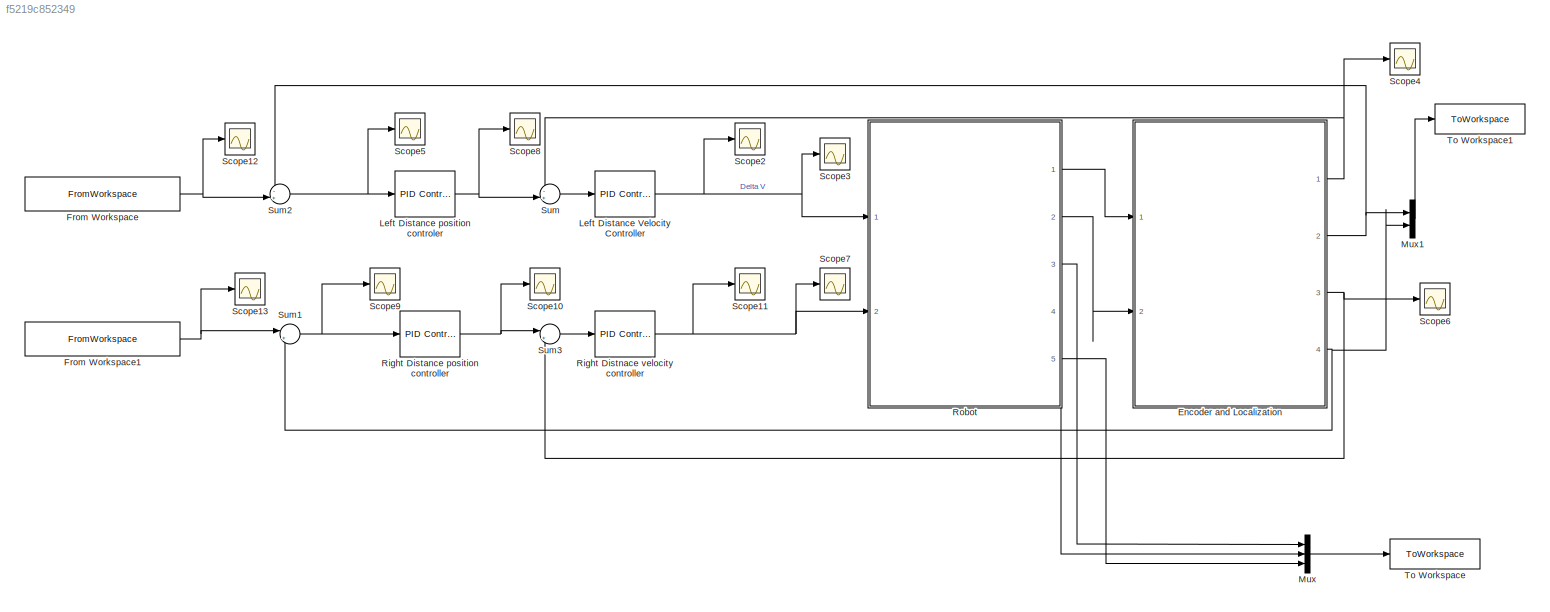
MODEL slx_f5219c852349
KIND model
CONFIG AbsTol = auto
CONFIG EnableMultiTasking = off
CONFIG FixedStep = auto
CONFIG MaxStep = auto
CONFIG MinStep = auto
CONFIG RelTol = 1e-3
CONFIG SampleTimeConstraint = Unconstrained
CONFIG SolverName = VariableStepAuto
CONFIG StartTime = 0.0
CONFIG StopTime = 10.0
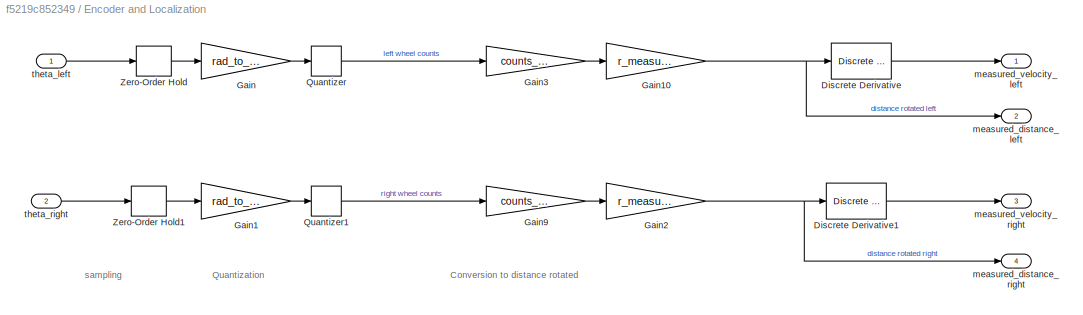
BLOCK [SubSystem] Encoder and Localization
  Ports = [2, 4]
  RequestExecContextInheritance = off
BLOCK [Reference] Encoder and Localization/Discrete Derivative  REF=simulink/Discrete/Discrete Derivative
  Ports = [1, 1]
  SourceBlock = simulink/Discrete/Discrete Derivative
  SourceProductBaseCode = SL
  SourceType = Discrete Derivative
BLOCK [Reference] Encoder and Localization/Discrete Derivative1  REF=simulink/Discrete/Discrete Derivative
  Ports = [1, 1]
  SourceBlock = simulink/Discrete/Discrete Derivative
  SourceProductBaseCode = SL
  SourceType = Discrete Derivative
BLOCK [Gain] Encoder and Localization/Gain
  Gain = rad_to_counts
BLOCK [Gain] Encoder and Localization/Gain1
  Gain = rad_to_counts
BLOCK [Gain] Encoder and Localization/Gain10
  Gain = r_measured_ft
BLOCK [Gain] Encoder and Localization/Gain2
  Gain = r_measured_ft
BLOCK [Gain] Encoder and Localization/Gain3
  Gain = counts_to_rad
BLOCK [Gain] Encoder and Localization/Gain9
  Gain = counts_to_rad
BLOCK [Quantizer] Encoder and Localization/Quantizer
  QuantizationInterval = 1
BLOCK [Quantizer] Encoder and Localization/Quantizer1
  QuantizationInterval = 1
BLOCK [ZeroOrderHold] Encoder and Localization/Zero-Order Hold
  SampleTime = Ts
BLOCK [ZeroOrderHold] Encoder and Localization/Zero-Order Hold1
  SampleTime = Ts
BLOCK [Outport] Encoder and Localization/measured_distance_left
  Port = 2
BLOCK [Outport] Encoder and Localization/measured_distance_right
  Port = 4
BLOCK [Outport] Encoder and Localization/measured_velocity_left
BLOCK [Outport] Encoder and Localization/measured_velocity_right
  Port = 3
BLOCK [Inport] Encoder and Localization/theta_left
BLOCK [Inport] Encoder and Localization/theta_right
  Port = 2
BLOCK [FromWorkspace] From Workspace
  VariableName = left_distance_desired
BLOCK [FromWorkspace] From Workspace1
  VariableName = right_distance_desired
BLOCK [Reference] Left Distance Velocity Controller  REF=slpidlib/PID Controller
  Ports = [1, 1]
  SourceBlock = slpidlib/PID Controller
  SourceProductBaseCode = SL
  SourceType = PID 1dof
BLOCK [Reference] Left Distance position controler  REF=slpidlib/PID Controller
  Ports = [1, 1]
  SourceBlock = slpidlib/PID Controller
  SourceProductBaseCode = SL
  SourceType = PID 1dof
BLOCK [Mux] Mux
  DisplayOption = bar
  Inputs = 3
  Ports = [3, 1]
BLOCK [Mux] Mux1
  DisplayOption = bar
  Inputs = 2
  Ports = [2, 1]
BLOCK [Reference] Right Distance position controller  REF=slpidlib/PID Controller
  Ports = [1, 1]
  SourceBlock = slpidlib/PID Controller
  SourceProductBaseCode = SL
  SourceType = PID 1dof
BLOCK [Reference] Right Distnace velocity controller  REF=slpidlib/PID Controller
  Ports = [1, 1]
  SourceBlock = slpidlib/PID Controller
  SourceProductBaseCode = SL
  SourceType = PID 1dof
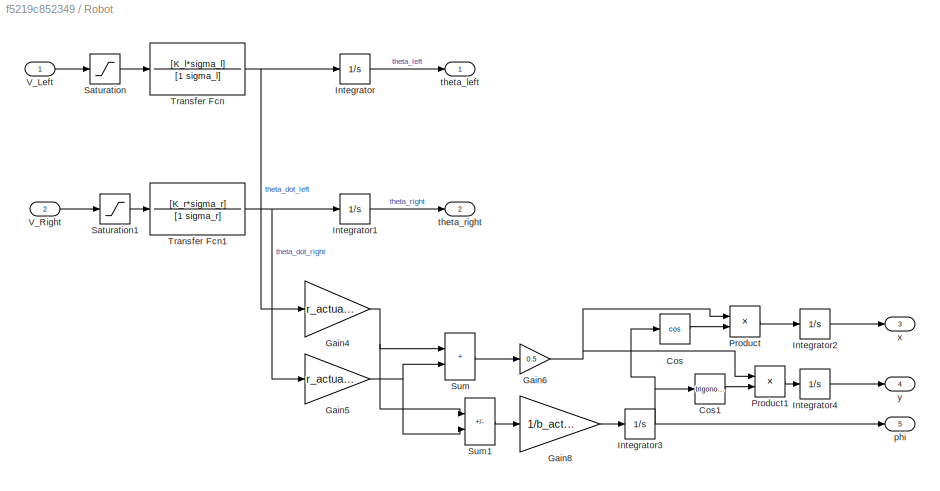
BLOCK [SubSystem] Robot
  Ports = [2, 5]
  RequestExecContextInheritance = off
BLOCK [Trigonometry] Robot/Cos
  Operator = cos
  Ports = [1, 1]
BLOCK [Trigonometry] Robot/Cos1
  Ports = [1, 1]
BLOCK [Gain] Robot/Gain4
  Gain = r_actual_ft
BLOCK [Gain] Robot/Gain5
  Gain = r_actual_ft
BLOCK [Gain] Robot/Gain6
  Gain = 0.5
BLOCK [Gain] Robot/Gain8
  Gain = 1/b_actual_ft
BLOCK [Integrator] Robot/Integrator
  Ports = [1, 1]
BLOCK [Integrator] Robot/Integrator1
  Ports = [1, 1]
BLOCK [Integrator] Robot/Integrator2
  Ports = [1, 1]
BLOCK [Integrator] Robot/Integrator3
  Ports = [1, 1]
BLOCK [Integrator] Robot/Integrator4
  Ports = [1, 1]
BLOCK [Product] Robot/Product
  Ports = [2, 1]
BLOCK [Product] Robot/Product1
  Ports = [2, 1]
BLOCK [Saturate] Robot/Saturation
  LowerLimit = -7.5
  UpperLimit = 7.5
BLOCK [Saturate] Robot/Saturation1
  LowerLimit = -7.5
  UpperLimit = 7.5
BLOCK [Sum] Robot/Sum
  IconShape = rectangular
  Ports = [2, 1]
BLOCK [Sum] Robot/Sum1
  IconShape = rectangular
  Inputs = -+
  Ports = [2, 1]
BLOCK [TransferFcn] Robot/Transfer Fcn
  Denominator = [1 sigma_l]
  Numerator = [K_l*sigma_l]
BLOCK [TransferFcn] Robot/Transfer Fcn1
  Denominator = [1 sigma_r]
  Numerator = [K_r*sigma_r]
BLOCK [Inport] Robot/V_Left
BLOCK [Inport] Robot/V_Right
  Port = 2
BLOCK [Outport] Robot/phi
  Port = 5
BLOCK [Outport] Robot/theta_left
BLOCK [Outport] Robot/theta_right
  Port = 2
BLOCK [Outport] Robot/x
  Port = 3
BLOCK [Outport] Robot/y
  Port = 4
BLOCK [Scope] Scope10
  Floating = off
  NumInputPorts = 1
  Ports = [1]
  ScopeSpecificationString = Simulink.scopes.TimeScopeBlockCfg('CurrentConfiguration', extmgr.ConfigurationSet(extmgr.Configuration('Core','General UI',true),extmgr.Configuration('Core','Source UI',true),extmgr.Configuration('Sources','WiredSimulink',true,'DataLoggingVariableName','ScopeData2'),extmgr.Configuration('Visuals','Time Domain',true,'SerializedDisplays',{struct('MinYLimReal','-0.33242','MaxYLimReal','1.14805','YLab...<+1415ch>
BLOCK [Scope] Scope11
  Floating = off
  NumInputPorts = 1
  Ports = [1]
  ScopeSpecificationString = Simulink.scopes.TimeScopeBlockCfg('CurrentConfiguration', extmgr.ConfigurationSet(extmgr.Configuration('Core','General UI',true),extmgr.Configuration('Core','Source UI',true),extmgr.Configuration('Sources','WiredSimulink',true,'DataLoggingVariableName','ScopeData3'),extmgr.Configuration('Visuals','Time Domain',true,'SerializedDisplays',{struct('MinYLimReal','-4.90899','MaxYLimReal','4.60204','YLab...<+1392ch>
BLOCK [Scope] Scope12
  Floating = off
  NumInputPorts = 1
  Ports = [1]
  ScopeSpecificationString = Simulink.scopes.TimeScopeBlockCfg('CurrentConfiguration', extmgr.ConfigurationSet(extmgr.Configuration('Core','General UI',true),extmgr.Configuration('Core','Source UI',true),extmgr.Configuration('Sources','WiredSimulink',true,'DataLoggingVariableName','ScopeData4'),extmgr.Configuration('Visuals','Time Domain',true,'SerializedDisplays',{struct('MinYLimReal','-0.25','MaxYLimReal','2.25','YLabelReal...<+1409ch>
BLOCK [Scope] Scope13
  Floating = off
  NumInputPorts = 1
  Ports = [1]
  ScopeSpecificationString = Simulink.scopes.TimeScopeBlockCfg('CurrentConfiguration', extmgr.ConfigurationSet(extmgr.Configuration('Core','General UI',true),extmgr.Configuration('Core','Source UI',true),extmgr.Configuration('Sources','WiredSimulink',true,'DataLoggingVariableName','ScopeData5'),extmgr.Configuration('Visuals','Time Domain',true,'SerializedDisplays',{struct('MinYLimReal','-0.25','MaxYLimReal','2.25','YLabelReal...<+1384ch>
BLOCK [Scope] Scope2
  Floating = off
  NumInputPorts = 1
  Ports = [1]
  ScopeSpecificationString = Simulink.scopes.TimeScopeBlockCfg('CurrentConfiguration', extmgr.ConfigurationSet(extmgr.Configuration('Core','General UI',true),extmgr.Configuration('Core','Source UI',true),extmgr.Configuration('Sources','WiredSimulink',true,'DataLoggingVariableName','ScopeData6'),extmgr.Configuration('Visuals','Time Domain',true,'SerializedDisplays',{struct('MinYLimReal','-0.97539','MaxYLimReal','4.90377','YLab...<+1396ch>
BLOCK [Scope] Scope3
  Floating = off
  NumInputPorts = 1
  Ports = [1]
  ScopeSpecificationString = Simulink.scopes.TimeScopeBlockCfg('CurrentConfiguration', extmgr.ConfigurationSet(extmgr.Configuration('Core','General UI',true),extmgr.Configuration('Core','Source UI',true),extmgr.Configuration('Sources','WiredSimulink',true,'DataLoggingVariableName','ScopeData7'),extmgr.Configuration('Visuals','Time Domain',true,'SerializedDisplays',{struct('MinYLimReal','-0.97539','MaxYLimReal','4.90377','YLab...<+1394ch>
BLOCK [Scope] Scope4
  Floating = off
  NumInputPorts = 1
  Ports = [1]
  ScopeSpecificationString = Simulink.scopes.TimeScopeBlockCfg('CurrentConfiguration', extmgr.ConfigurationSet(extmgr.Configuration('Core','General UI',true),extmgr.Configuration('Core','Source UI',true),extmgr.Configuration('Sources','WiredSimulink',true,'DataLoggingVariableName','ScopeData8'),extmgr.Configuration('Visuals','Time Domain',true,'SerializedDisplays',{struct('MinYLimReal','-0.34907','MaxYLimReal','2.26893','YLab...<+1411ch>
BLOCK [Scope] Scope5
  Floating = off
  NumInputPorts = 1
  Ports = [1]
  ScopeSpecificationString = Simulink.scopes.TimeScopeBlockCfg('CurrentConfiguration', extmgr.ConfigurationSet(extmgr.Configuration('Core','General UI',true),extmgr.Configuration('Core','Source UI',true),extmgr.Configuration('Sources','WiredSimulink',true,'DataLoggingVariableName','ScopeData9'),extmgr.Configuration('Visuals','Time Domain',true,'SerializedDisplays',{struct('MinYLimReal','-0.31278','MaxYLimReal','0.8675','YLabe...<+1413ch>
BLOCK [Scope] Scope6
  Floating = off
  NumInputPorts = 1
  Ports = [1]
  ScopeSpecificationString = Simulink.scopes.TimeScopeBlockCfg('CurrentConfiguration', extmgr.ConfigurationSet(extmgr.Configuration('Core','General UI',true),extmgr.Configuration('Core','Source UI',true),extmgr.Configuration('Sources','WiredSimulink',true,'DataLoggingVariableName','ScopeData10'),extmgr.Configuration('Visuals','Time Domain',true,'SerializedDisplays',{struct('MinYLimReal','-0.27085','MaxYLimReal','2.31114','YLa...<+1414ch>
BLOCK [Scope] Scope7
  Floating = off
  NumInputPorts = 1
  Ports = [1]
  ScopeSpecificationString = Simulink.scopes.TimeScopeBlockCfg('CurrentConfiguration', extmgr.ConfigurationSet(extmgr.Configuration('Core','General UI',true),extmgr.Configuration('Core','Source UI',true),extmgr.Configuration('Sources','WiredSimulink',true,'DataLoggingVariableName','ScopeData11'),extmgr.Configuration('Visuals','Time Domain',true,'SerializedDisplays',{struct('MinYLimReal','-6.08086','MaxYLimReal','44.30888','YL...<+1396ch>
BLOCK [Scope] Scope8
  Floating = off
  NumInputPorts = 1
  Ports = [1]
  ScopeSpecificationString = Simulink.scopes.TimeScopeBlockCfg('CurrentConfiguration', extmgr.ConfigurationSet(extmgr.Configuration('Core','General UI',true),extmgr.Configuration('Core','Source UI',true),extmgr.Configuration('Sources','WiredSimulink',true,'DataLoggingVariableName','ScopeData12'),extmgr.Configuration('Visuals','Time Domain',true,'SerializedDisplays',{struct('MinYLimReal','-0.43152','MaxYLimReal','3.1402','YLab...<+1417ch>
BLOCK [Scope] Scope9
  Floating = off
  NumInputPorts = 1
  Ports = [1]
  ScopeSpecificationString = Simulink.scopes.TimeScopeBlockCfg('CurrentConfiguration', extmgr.ConfigurationSet(extmgr.Configuration('Core','General UI',true),extmgr.Configuration('Core','Source UI',true),extmgr.Configuration('Sources','WiredSimulink',true),extmgr.Configuration('Visuals','Time Domain',true,'SerializedDisplays',{struct('MinYLimReal','-0.30989','MaxYLimReal','2.20429','YLabelReal','','MinYLimMag','0.00000','MaxY...<+1352ch>
BLOCK [Sum] Sum
  Inputs = -+|
  Ports = [2, 1]
BLOCK [Sum] Sum1
  Inputs = |+-
  Ports = [2, 1]
BLOCK [Sum] Sum2
  Inputs = -+|
  Ports = [2, 1]
BLOCK [Sum] Sum3
  Inputs = |+-
  Ports = [2, 1]
BLOCK [ToWorkspace] To Workspace
  FixptAsFi = on
  MaxDataPoints = inf
  Ports = [1]
  SampleTime = .1
  SaveFormat = Timeseries
  VariableName = Pos
BLOCK [ToWorkspace] To Workspace1
  FixptAsFi = on
  MaxDataPoints = inf
  Ports = [1]
  SampleTime = .1
  SaveFormat = Timeseries
  VariableName = Wheel_Pos
ANNOTATION Encoder and Localization: Conversion to distance rotated
ANNOTATION Encoder and Localization: Quantization
ANNOTATION Encoder and Localization: sampling
LINE Encoder and Localization/Discrete Derivative1:1 -> Encoder and Localization/measured_velocity_right:1
LINE Encoder and Localization/Discrete Derivative:1 -> Encoder and Localization/measured_velocity_left:1
NET Encoder and Localization/Gain10:1 -> Encoder and Localization/Discrete Derivative:1, Encoder and Localization/measured_distance_left:1
LINE Encoder and Localization/Gain1:1 -> Encoder and Localization/Quantizer1:1
NET Encoder and Localization/Gain2:1 -> Encoder and Localization/Discrete Derivative1:1, Encoder and Localization/measured_distance_right:1
LINE Encoder and Localization/Gain3:1 -> Encoder and Localization/Gain10:1
LINE Encoder and Localization/Gain9:1 -> Encoder and Localization/Gain2:1
LINE Encoder and Localization/Gain:1 -> Encoder and Localization/Quantizer:1
LINE Encoder and Localization/Quantizer1:1 -> Encoder and Localization/Gain9:1
LINE Encoder and Localization/Quantizer:1 -> Encoder and Localization/Gain3:1
LINE Encoder and Localization/Zero-Order Hold1:1 -> Encoder and Localization/Gain1:1
LINE Encoder and Localization/Zero-Order Hold:1 -> Encoder and Localization/Gain:1
LINE Encoder and Localization/theta_left:1 -> Encoder and Localization/Zero-Order Hold:1
LINE Encoder and Localization/theta_right:1 -> Encoder and Localization/Zero-Order Hold1:1
NET Encoder and Localization:1 -> Scope4:1, Sum:1
NET Encoder and Localization:2 -> Mux1:1, Sum2:1
NET Encoder and Localization:3 -> Scope6:1, Sum3:2
NET Encoder and Localization:4 -> Mux1:2, Sum1:2
NET From Workspace1:1 -> Scope13:1, Sum1:1
NET From Workspace:1 -> Scope12:1, Sum2:2
NET Left Distance Velocity Controller:1 -> Robot:1, Scope2:1, Scope3:1
NET Left Distance position controler:1 -> Scope8:1, Sum:2
LINE Mux1:1 -> To Workspace1:1
LINE Mux:1 -> To Workspace:1
NET Right Distance position controller:1 -> Scope10:1, Sum3:1
NET Right Distnace velocity controller:1 -> Robot:2, Scope11:1, Scope7:1
LINE Robot/Cos1:1 -> Robot/Product1:2
LINE Robot/Cos:1 -> Robot/Product:2
NET Robot/Gain4:1 -> Robot/Sum1:1, Robot/Sum:1
NET Robot/Gain5:1 -> Robot/Sum1:2, Robot/Sum:2
NET Robot/Gain6:1 -> Robot/Product1:1, Robot/Product:1
LINE Robot/Gain8:1 -> Robot/Integrator3:1
LINE Robot/Integrator1:1 -> Robot/theta_right:1
LINE Robot/Integrator2:1 -> Robot/x:1
NET Robot/Integrator3:1 -> Robot/Cos1:1, Robot/Cos:1, Robot/phi:1
LINE Robot/Integrator4:1 -> Robot/y:1
LINE Robot/Integrator:1 -> Robot/theta_left:1
LINE Robot/Product1:1 -> Robot/Integrator4:1
LINE Robot/Product:1 -> Robot/Integrator2:1
LINE Robot/Saturation1:1 -> Robot/Transfer Fcn1:1
LINE Robot/Saturation:1 -> Robot/Transfer Fcn:1
LINE Robot/Sum1:1 -> Robot/Gain8:1
LINE Robot/Sum:1 -> Robot/Gain6:1
NET Robot/Transfer Fcn1:1 -> Robot/Gain5:1, Robot/Integrator1:1
NET Robot/Transfer Fcn:1 -> Robot/Gain4:1, Robot/Integrator:1
LINE Robot/V_Left:1 -> Robot/Saturation:1
LINE Robot/V_Right:1 -> Robot/Saturation1:1
LINE Robot:1 -> Encoder and Localization:1
LINE Robot:2 -> Encoder and Localization:2
LINE Robot:3 -> Mux:1
LINE Robot:4 -> Mux:2
LINE Robot:5 -> Mux:3
NET Sum1:1 -> Right Distance position controller:1, Scope9:1
NET Sum2:1 -> Left Distance position controler:1, Scope5:1
LINE Sum3:1 -> Right Distnace velocity controller:1
LINE Sum:1 -> Left Distance Velocity Controller:1
note: NET lines group one-source signal fan-out (src -> all destinations, sorted); 1:1 wires keep LINE
